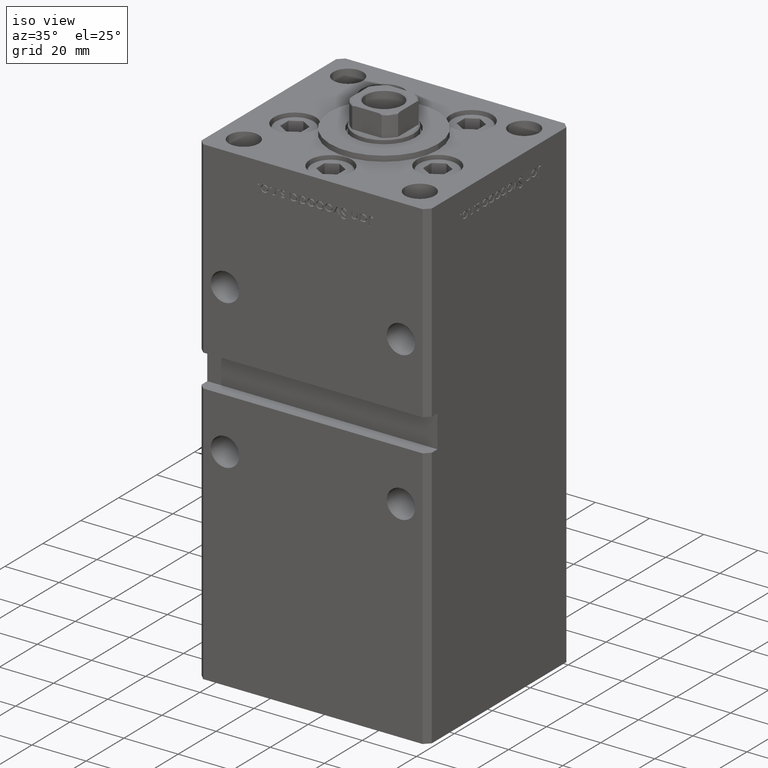
[diagram: clean part render]
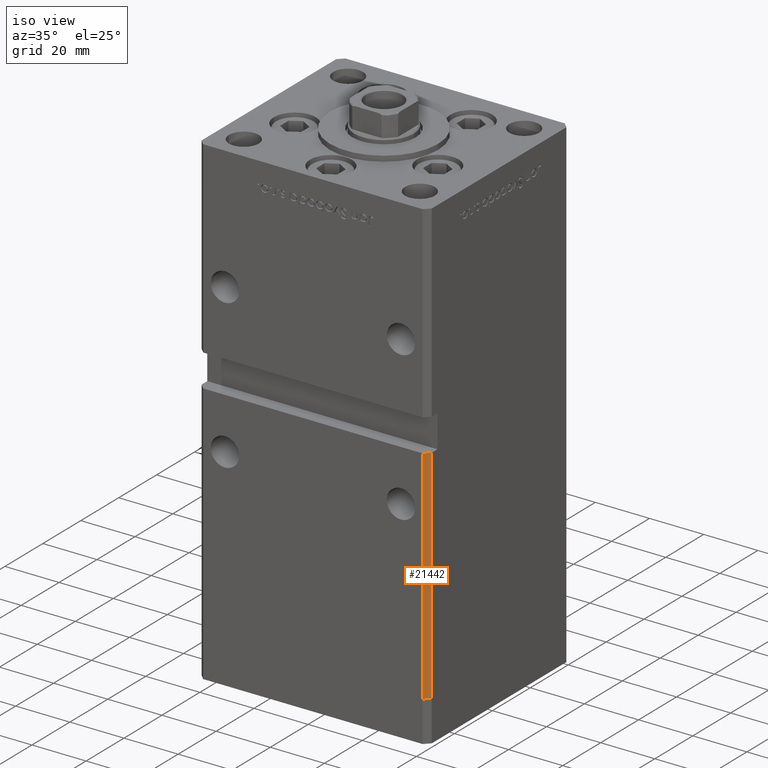
[diagram: same view with one face highlighted and labeled with its STEP entity id]
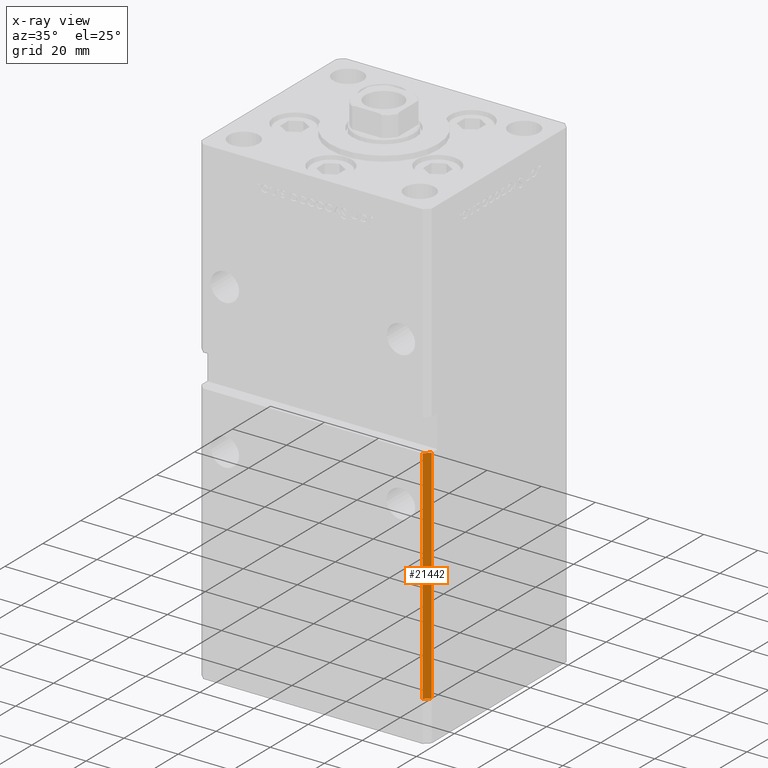
[diagram: x-ray of the same camera — body ghosted, the highlighted face saturated]
A machine part, iso view. The second image highlights one B-rep face of the part: STEP entity #21442.
The next image is the same camera in x-ray: the body ghosted, the highlighted face saturated — about 0% of this face is hidden behind the body in this view.
In plain terms, the highlighted planar face has unit normal (0.7071, -0.7071, 0).
Its self-contained STEP definition (entity closure, byte-faithful):
#838 = DIRECTION ( 'NONE',  ( -0.000000000000000000, -0.000000000000000000, -1.000000000000000000 ) ) ;
#2224 = VECTOR ( 'NONE', #48754, 1000.000000000000114 ) ;
#2488 = VECTOR ( 'NONE', #37942, 1000.000000000000000 ) ;
#3730 = VERTEX_POINT ( 'NONE', #8592 ) ;
#8592 = CARTESIAN_POINT ( 'NONE',  ( 40.49999999999998579, -37.50000000000000711, 0.000000000000000000 ) ) ;
#10831 = EDGE_CURVE ( 'NONE', #51602, #3730, #37636, .T. ) ;
#12531 = FACE_OUTER_BOUND ( 'NONE', #36575, .T. ) ;
#13770 = CARTESIAN_POINT ( 'NONE',  ( 42.49999999999998579, -35.50000000000000711, 148.5000000000000000 ) ) ;
#15912 = CARTESIAN_POINT ( 'NONE',  ( 40.49999999999998579, -37.50000000000000711, 82.00000000000000000 ) ) ;
#15962 = LINE ( 'NONE', #32349, #2224 ) ;
#17809 = LINE ( 'NONE', #13770, #2488 ) ;
#20553 = VECTOR ( 'NONE', #41019, 1000.000000000000114 ) ;
#20590 = PLANE ( 'NONE',  #35678 ) ;
#21442 = ADVANCED_FACE ( 'NONE', ( #12531 ), #20590, .T. ) ;
#21851 = EDGE_CURVE ( 'NONE', #37620, #3730, #15962, .T. ) ;
#24622 = CARTESIAN_POINT ( 'NONE',  ( 42.49999999999998579, -35.50000000000000711, 82.00000000000000000 ) ) ;
#28674 = LINE ( 'NONE', #24622, #20553 ) ;
#28930 = CARTESIAN_POINT ( 'NONE',  ( 42.49999999999998579, -35.50000000000000711, 148.5000000000000000 ) ) ;
#30684 = VERTEX_POINT ( 'NONE', #48925 ) ;
#32003 = CARTESIAN_POINT ( 'NONE',  ( 42.49999999999998579, -35.50000000000000711, 0.000000000000000000 ) ) ;
#32141 = ORIENTED_EDGE ( 'NONE', *, *, #10831, .T. ) ;
#32349 = CARTESIAN_POINT ( 'NONE',  ( 42.49999999999998579, -35.50000000000000711, 0.000000000000000000 ) ) ;
#33470 = DIRECTION ( 'NONE',  ( 0.7071067811865474617, 0.7071067811865474617, 0.000000000000000000 ) ) ;
#35678 = AXIS2_PLACEMENT_3D ( 'NONE', #28930, #44781, #33470 ) ;
#36575 = EDGE_LOOP ( 'NONE', ( #45838, #32141, #41012, #40749 ) ) ;
#37620 = VERTEX_POINT ( 'NONE', #32003 ) ;
#37636 = LINE ( 'NONE', #43215, #48392 ) ;
#37942 = DIRECTION ( 'NONE',  ( -0.000000000000000000, -0.000000000000000000, -1.000000000000000000 ) ) ;
#38281 = EDGE_CURVE ( 'NONE', #30684, #37620, #17809, .T. ) ;
#40043 = EDGE_CURVE ( 'NONE', #51602, #30684, #28674, .T. ) ;
#40749 = ORIENTED_EDGE ( 'NONE', *, *, #38281, .F. ) ;
#41012 = ORIENTED_EDGE ( 'NONE', *, *, #21851, .F. ) ;
#41019 = DIRECTION ( 'NONE',  ( 0.7071067811865474617, 0.7071067811865474617, 0.000000000000000000 ) ) ;
#43215 = CARTESIAN_POINT ( 'NONE',  ( 40.49999999999998579, -37.50000000000000711, 148.5000000000000000 ) ) ;
#44781 = DIRECTION ( 'NONE',  ( 0.7071067811865475727, -0.7071067811865475727, 0.000000000000000000 ) ) ;
#45838 = ORIENTED_EDGE ( 'NONE', *, *, #40043, .F. ) ;
#48392 = VECTOR ( 'NONE', #838, 1000.000000000000000 ) ;
#48754 = DIRECTION ( 'NONE',  ( -0.7071067811865474617, -0.7071067811865474617, 0.000000000000000000 ) ) ;
#48925 = CARTESIAN_POINT ( 'NONE',  ( 42.49999999999998579, -35.50000000000000711, 82.00000000000000000 ) ) ;
#51602 = VERTEX_POINT ( 'NONE', #15912 ) ;